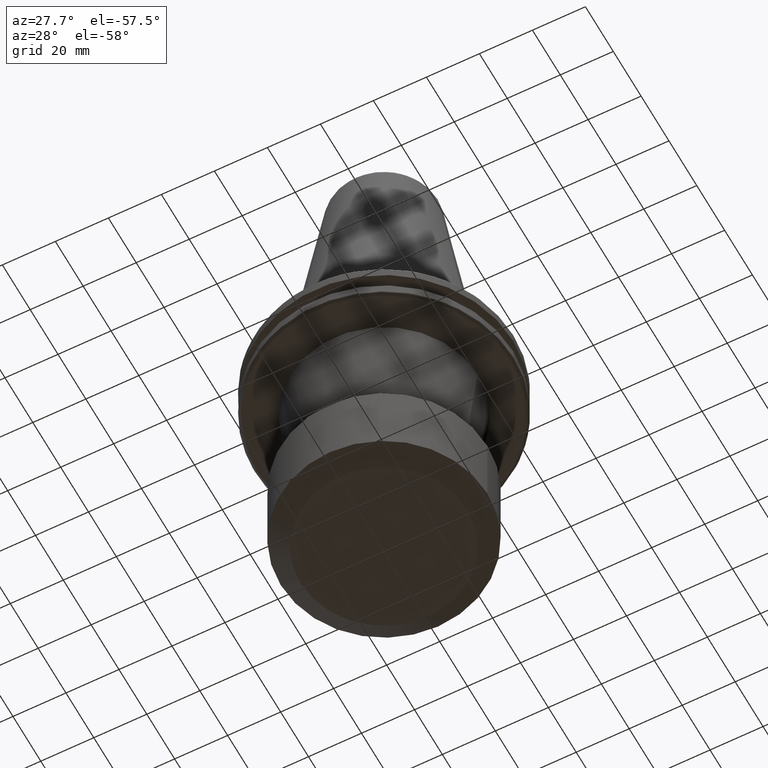
[diagram: clean part render]
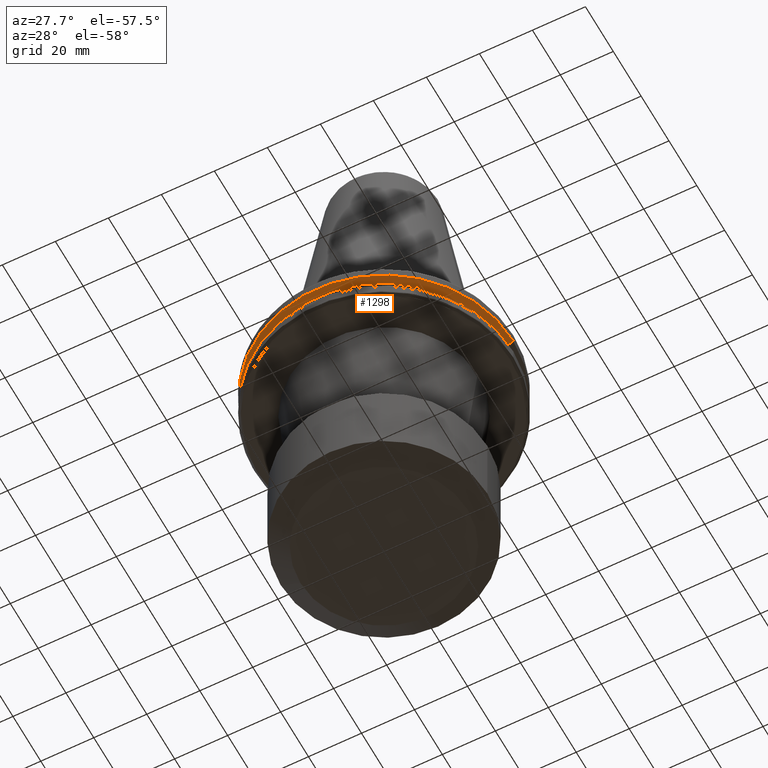
[diagram: same view with one face highlighted and labeled with its STEP entity id]
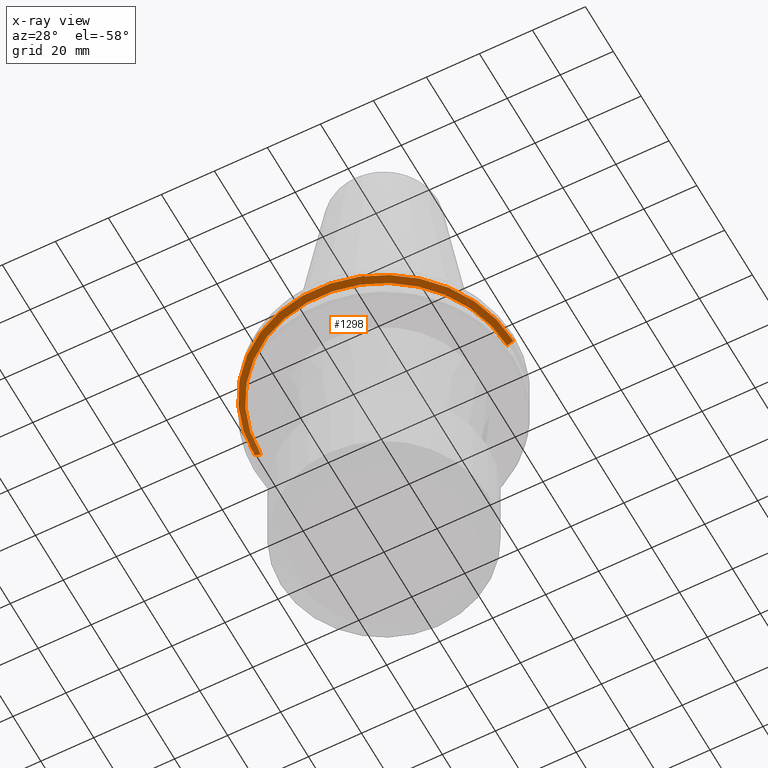
[diagram: x-ray of the same camera — body ghosted, the highlighted face saturated]
A machine part, auxiliary view. The second image highlights one B-rep face of the part: STEP entity #1298.
The next image is the same camera in x-ray: the body ghosted, the highlighted face saturated — about 0% of this face is hidden behind the body in this view.
In plain terms, the highlighted conical surface has half-angle 60 deg.
Its self-contained STEP definition (entity closure, byte-faithful):
#20 = DIRECTION ( 'NONE',  ( 0.8660254037844391500, 0.0000000000000000000, 0.4999999999999991100 ) ) ;
#173 = CARTESIAN_POINT ( 'NONE',  ( 48.75000000000000700, 0.0000000000000000000, -7.852404735808348400 ) ) ;
#204 = DIRECTION ( 'NONE',  ( 1.000000000000000000, 0.0000000000000000000, 0.0000000000000000000 ) ) ;
#208 = DIRECTION ( 'NONE',  ( -0.0000000000000000000, -0.0000000000000000000, -1.000000000000000000 ) ) ;
#212 = CARTESIAN_POINT ( 'NONE',  ( 0.0000000000000000000, 0.0000000000000000000, -7.852404735808352000 ) ) ;
#260 = EDGE_LOOP ( 'NONE', ( #1350, #425, #2166, #3078 ) ) ;
#302 = VERTEX_POINT ( 'NONE', #1165 ) ;
#376 = CARTESIAN_POINT ( 'NONE',  ( 48.75000000000000000, 0.0000000000000000000, -7.852404735808352000 ) ) ;
#425 = ORIENTED_EDGE ( 'NONE', *, *, #1129, .T. ) ;
#500 = VERTEX_POINT ( 'NONE', #859 ) ;
#506 = CARTESIAN_POINT ( 'NONE',  ( -46.41589653438085600, 5.827230528940885300E-015, -9.199999999999999300 ) ) ;
#532 = VERTEX_POINT ( 'NONE', #506 ) ;
#542 = VERTEX_POINT ( 'NONE', #376 ) ;
#589 = CARTESIAN_POINT ( 'NONE',  ( 0.0000000000000000000, 0.0000000000000000000, -9.199999999999999300 ) ) ;
#602 = EDGE_CURVE ( 'NONE', #542, #500, #1587, .T. ) ;
#725 = EDGE_CURVE ( 'NONE', #302, #542, #2477, .T. ) ;
#856 = DIRECTION ( 'NONE',  ( 1.000000000000000000, 0.0000000000000000000, 0.0000000000000000000 ) ) ;
#859 = CARTESIAN_POINT ( 'NONE',  ( -48.75000000000000000, 5.970153145843347100E-015, -7.852404735808352000 ) ) ;
#1033 = CARTESIAN_POINT ( 'NONE',  ( 0.0000000000000000000, 0.0000000000000000000, -7.852404735808348400 ) ) ;
#1129 = EDGE_CURVE ( 'NONE', #532, #302, #1929, .T. ) ;
#1163 = LINE ( 'NONE', #2988, #2855 ) ;
#1165 = CARTESIAN_POINT ( 'NONE',  ( 46.41589653438085600, 0.0000000000000000000, -9.199999999999999300 ) ) ;
#1203 = DIRECTION ( 'NONE',  ( -0.8660254037844391500, 1.060575238724907500E-016, 0.4999999999999991100 ) ) ;
#1298 = ADVANCED_FACE ( 'NONE', ( #1539 ), #1418, .T. ) ;
#1350 = ORIENTED_EDGE ( 'NONE', *, *, #1730, .F. ) ;
#1360 = AXIS2_PLACEMENT_3D ( 'NONE', #1033, #2031, #2270 ) ;
#1418 = CONICAL_SURFACE ( 'NONE', #1360, 48.75000000000000700, 1.047197551196598700 ) ;
#1539 = FACE_OUTER_BOUND ( 'NONE', #260, .T. ) ;
#1587 = CIRCLE ( 'NONE', #1717, 48.75000000000000000 ) ;
#1680 = AXIS2_PLACEMENT_3D ( 'NONE', #589, #2343, #856 ) ;
#1717 = AXIS2_PLACEMENT_3D ( 'NONE', #212, #208, #204 ) ;
#1730 = EDGE_CURVE ( 'NONE', #532, #500, #1163, .T. ) ;
#1929 = CIRCLE ( 'NONE', #1680, 46.41589653438085600 ) ;
#2031 = DIRECTION ( 'NONE',  ( 0.0000000000000000000, 0.0000000000000000000, 1.000000000000000000 ) ) ;
#2166 = ORIENTED_EDGE ( 'NONE', *, *, #725, .T. ) ;
#2270 = DIRECTION ( 'NONE',  ( 1.000000000000000000, 0.0000000000000000000, 0.0000000000000000000 ) ) ;
#2343 = DIRECTION ( 'NONE',  ( 0.0000000000000000000, 0.0000000000000000000, 1.000000000000000000 ) ) ;
#2395 = VECTOR ( 'NONE', #20, 1000.000000000000000 ) ;
#2477 = LINE ( 'NONE', #173, #2395 ) ;
#2855 = VECTOR ( 'NONE', #1203, 1000.000000000000000 ) ;
#2988 = CARTESIAN_POINT ( 'NONE',  ( -48.75000000000000700, 5.970153145843347900E-015, -7.852404735808348400 ) ) ;
#3078 = ORIENTED_EDGE ( 'NONE', *, *, #602, .T. ) ;